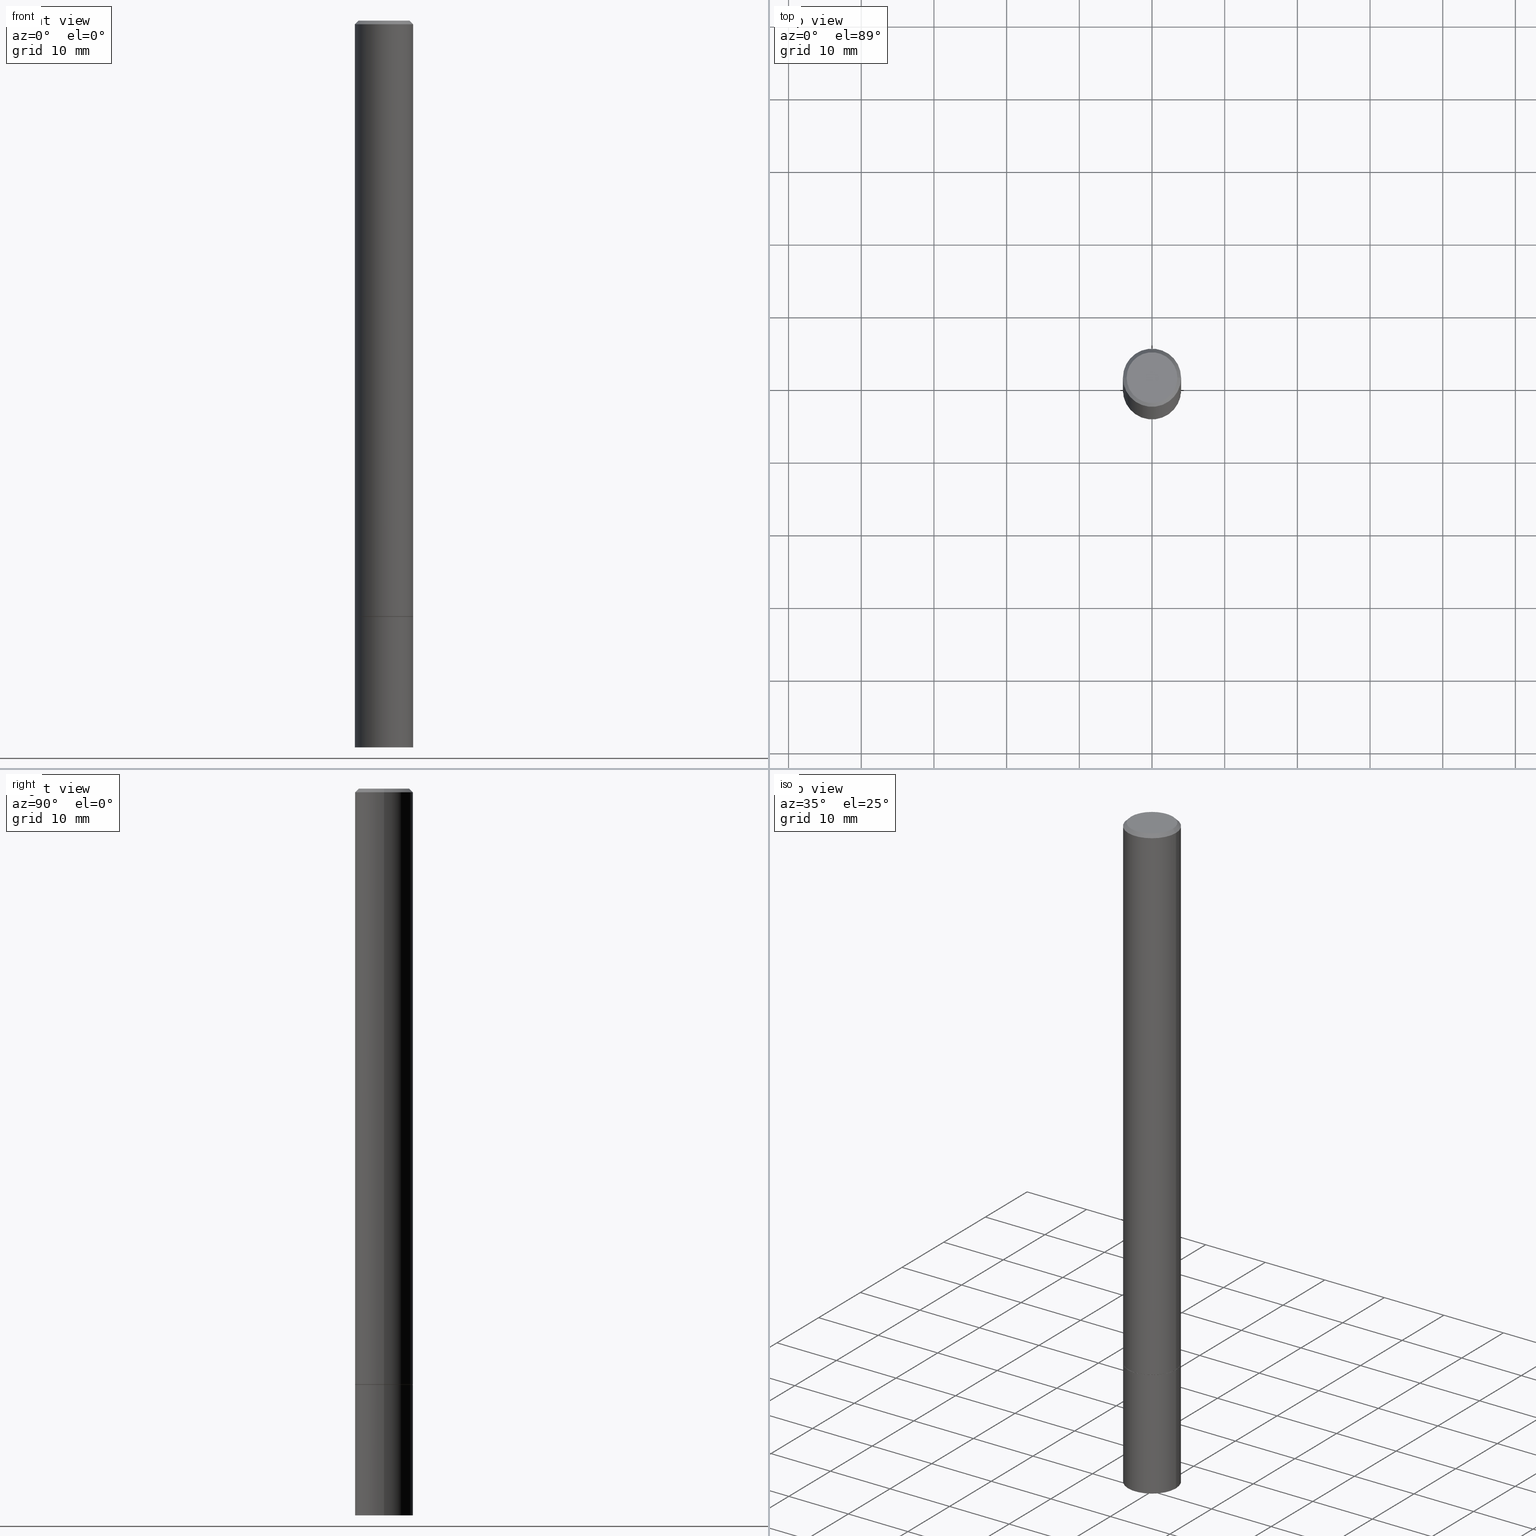
[diagram: canonical four-view strip — front | top / right | iso, engineering-drawing reading convention]
A machine part, canonical four-view strip (front | top / right | iso — engineering-drawing reading convention). The complete STEP part file that produces these views, byte-faithful:
ISO-10303-21;
HEADER;
FILE_DESCRIPTION (( 'STEP AP203' ),
    '1' );
FILE_NAME ('46141.STEP',
    '2024-02-28T10:05:58',
    ( '' ),
    ( '' ),
    'SwSTEP 2.0',
    'SolidWorks 2023',
    '' );
FILE_SCHEMA (( 'CONFIG_CONTROL_DESIGN' ));
ENDSEC;

DATA;
#1 = ORIENTED_EDGE ( 'NONE', *, *, #143, .F. ) ;
#2 = VERTEX_POINT ( 'NONE', #274 ) ;
#3 = DIRECTION ( 'NONE',  ( 0.000000000000000000, 0.000000000000000000, 1.000000000000000000 ) ) ;
#4 = DIRECTION ( 'NONE',  ( 1.000000000000000000, -6.982962677686265922E-15, 0.000000000000000000 ) ) ;
#5 = ORIENTED_EDGE ( 'NONE', *, *, #206, .T. ) ;
#6 = DIRECTION ( 'NONE',  ( -1.000000000000000000, 6.982962677686265922E-15, -4.876176775795935793E-29 ) ) ;
#7 = APPROVAL_ROLE ( '' ) ;
#8 = CARTESIAN_POINT ( 'NONE',  ( 9.601573681818585173E-16, 0.1374999999999995670, -4.779444278458807216E-16 ) ) ;
#9 = VECTOR ( 'NONE', #259, 39.37007874015748143 ) ;
#10 = VECTOR ( 'NONE', #180, 39.37007874015748143 ) ;
#11 = FACE_OUTER_BOUND ( 'NONE', #20, .T. ) ;
#12 = DIRECTION ( 'NONE',  ( 1.000000000000000000, -6.982962677686261977E-15, 0.000000000000000000 ) ) ;
#13 = APPROVAL_ROLE ( '' ) ;
#14 = CARTESIAN_POINT ( 'NONE',  ( 0.1575000000000000011, -1.237136582792291392E-14, -3.228299999999999947 ) ) ;
#15 = AXIS2_PLACEMENT_3D ( 'NONE', #102, #333, #237 ) ;
#16 = CARTESIAN_POINT ( 'NONE',  ( -0.1574999999999995570, 1.029986994958720829E-15, -0.02000000000000003511 ) ) ;
#17 = MANIFOLD_SOLID_BREP ( 'Body-Move/Copy2[1]', #195 ) ;
#18 = EDGE_CURVE ( 'NONE', #26, #364, #77, .T. ) ;
#19 = DIRECTION ( 'NONE',  ( -2.445468806185136597E-29, 3.491481338843145583E-15, 1.000000000000000000 ) ) ;
#20 = EDGE_LOOP ( 'NONE', ( #54, #32 ) ) ;
#21 = DIRECTION ( 'NONE',  ( -2.445468806185136597E-29, 3.491481338843145583E-15, 1.000000000000000000 ) ) ;
#22 = DIRECTION ( 'NONE',  ( 1.000000000000000000, -6.982962677686265922E-15, 0.000000000000000000 ) ) ;
#23 = AXIS2_PLACEMENT_3D ( 'NONE', #331, #19, #22 ) ;
#24 = EDGE_LOOP ( 'NONE', ( #79, #116 ) ) ;
#25 = CARTESIAN_POINT ( 'NONE',  ( 0.000000000000000000, 0.000000000000000000, 0.000000000000000000 ) ) ;
#26 = VERTEX_POINT ( 'NONE', #271 ) ;
#27 = APPLICATION_PROTOCOL_DEFINITION ( 'international standard', 'config_control_design', 1994, #163 ) ;
#28 = VERTEX_POINT ( 'NONE', #222 ) ;
#29 = APPLICATION_CONTEXT ( 'configuration controlled 3d designs of mechanical parts and assemblies' ) ;
#30 = CIRCLE ( 'NONE', #133, 0.1575000000000000011 ) ;
#31 = CC_DESIGN_PERSON_AND_ORGANIZATION_ASSIGNMENT ( #106, #218, ( #59 ) ) ;
#32 = ORIENTED_EDGE ( 'NONE', *, *, #249, .F. ) ;
#33 = EDGE_LOOP ( 'NONE', ( #220, #171, #198, #265 ) ) ;
#34 = ORIENTED_EDGE ( 'NONE', *, *, #260, .F. ) ;
#35 = VECTOR ( 'NONE', #44, 39.37007874015748143 ) ;
#36 = ADVANCED_FACE ( 'NONE', ( #200 ), #338, .T. ) ;
#37 = CARTESIAN_POINT ( 'NONE',  ( -0.1574999999999997513, 1.119104808822156026E-15, -7.747322767151464373E-30 ) ) ;
#38 = COORDINATED_UNIVERSAL_TIME_OFFSET ( 5, 0, .BEHIND. ) ;
#39 = DIRECTION ( 'NONE',  ( -1.000000000000000000, 6.982962677686265922E-15, -4.876176775795935793E-29 ) ) ;
#40 = CARTESIAN_POINT ( 'NONE',  ( 7.894706947007477118E-29, -1.127154920618732880E-14, -3.228299999999999947 ) ) ;
#41 = PERSON_AND_ORGANIZATION_ROLE ( 'creator' ) ;
#42 = CARTESIAN_POINT ( 'NONE',  ( 1.099816621735665577E-15, 0.1574999999999887323, -3.228300000000000836 ) ) ;
#43 = EDGE_CURVE ( 'NONE', #110, #324, #268, .T. ) ;
#44 = DIRECTION ( 'NONE',  ( 0.7071067811865466846, -7.319954787623252890E-15, -0.7071067811865483499 ) ) ;
#45 = CC_DESIGN_DATE_AND_TIME_ASSIGNMENT ( #68, #332, ( #95 ) ) ;
#46 = CONICAL_SURFACE ( 'NONE', #127, 0.1574999999999995570, 0.7853981633974471688 ) ;
#47 = DIRECTION ( 'NONE',  ( -2.445468806185136597E-29, 3.491481338843145583E-15, 1.000000000000000000 ) ) ;
#48 = DIRECTION ( 'NONE',  ( -2.445468806185136597E-29, 3.491481338843145583E-15, 1.000000000000000000 ) ) ;
#49 = DIRECTION ( 'NONE',  ( -2.445468806185136597E-29, 3.491481338843145583E-15, 1.000000000000000000 ) ) ;
#50 = VERTEX_POINT ( 'NONE', #113 ) ;
#51 = CC_DESIGN_DATE_AND_TIME_ASSIGNMENT ( #147, #149, ( #107 ) ) ;
#52 = MECHANICAL_CONTEXT ( 'NONE', #163, 'mechanical' ) ;
#53 = VERTEX_POINT ( 'NONE', #309 ) ;
#54 = ORIENTED_EDGE ( 'NONE', *, *, #89, .F. ) ;
#55 = AXIS2_PLACEMENT_3D ( 'NONE', #42, #350, #39 ) ;
#56 = EDGE_LOOP ( 'NONE', ( #1, #308, #201, #58 ) ) ;
#57 = AXIS2_PLACEMENT_3D ( 'NONE', #357, #47, #291 ) ;
#58 = ORIENTED_EDGE ( 'NONE', *, *, #216, .F. ) ;
#59 = PRODUCT ( '46141', '46141', '', ( #52 ) ) ;
#60 = ORIENTED_EDGE ( 'NONE', *, *, #318, .T. ) ;
#61 = APPROVAL ( #132, 'UNSPECIFIED' ) ;
#62 = LINE ( 'NONE', #37, #108 ) ;
#63 = CARTESIAN_POINT ( 'NONE',  ( 0.1575000000000000011, -1.099816621735586889E-15, 7.679978421878598033E-30 ) ) ;
#64 = DIRECTION ( 'NONE',  ( 1.000000000000000000, -6.982962677686261977E-15, 0.000000000000000000 ) ) ;
#65 = LINE ( 'NONE', #203, #35 ) ;
#66 = CC_DESIGN_SECURITY_CLASSIFICATION ( #95, ( #101 ) ) ;
#67 = LINE ( 'NONE', #156, #262 ) ;
#68 = DATE_AND_TIME ( #190, #273 ) ;
#69 = CARTESIAN_POINT ( 'NONE',  ( 0.1575000000000000011, -1.484577865276105011E-14, -3.937000000000000277 ) ) ;
#70 = COORDINATED_UNIVERSAL_TIME_OFFSET ( 5, 0, .BEHIND. ) ;
#71 = EDGE_LOOP ( 'NONE', ( #272, #343, #306, #303 ) ) ;
#72 = LOCAL_TIME ( 5, 5, 58.00000000000000000, #252 ) ;
#73 = CIRCLE ( 'NONE', #311, 0.1575000000000000011 ) ;
#74 = LINE ( 'NONE', #16, #244 ) ;
#75 = EDGE_CURVE ( 'NONE', #28, #196, #94, .T. ) ;
#76 = ORIENTED_EDGE ( 'NONE', *, *, #216, .T. ) ;
#77 = CIRCLE ( 'NONE', #223, 0.1575000000000000011 ) ;
#78 = DIRECTION ( 'NONE',  ( 1.000000000000000000, 0.000000000000000000, 0.000000000000000000 ) ) ;
#79 = ORIENTED_EDGE ( 'NONE', *, *, #229, .F. ) ;
#80 = ORIENTED_EDGE ( 'NONE', *, *, #89, .T. ) ;
#81 = DIRECTION ( 'NONE',  ( 2.445468806185136597E-29, -3.491481338843145583E-15, -1.000000000000000000 ) ) ;
#82 = ORIENTED_EDGE ( 'NONE', *, *, #289, .T. ) ;
#83 = EDGE_LOOP ( 'NONE', ( #80, #5, #328, #337 ) ) ;
#84 = APPROVAL_DATE_TIME ( #257, #124 ) ;
#85 = DIRECTION ( 'NONE',  ( -1.000000000000000000, 6.982962677686265922E-15, -4.876176775795935793E-29 ) ) ;
#86 = CIRCLE ( 'NONE', #278, 0.1374999999999995670 ) ;
#87 = AXIS2_PLACEMENT_3D ( 'NONE', #104, #49, #326 ) ;
#88 = DIRECTION ( 'NONE',  ( -2.445468806185136597E-29, 3.491481338843145583E-15, 1.000000000000000000 ) ) ;
#89 = EDGE_CURVE ( 'NONE', #2, #219, #119, .T. ) ;
#90 = PLANE ( 'NONE',  #55 ) ;
#91 = UNCERTAINTY_MEASURE_WITH_UNIT (LENGTH_MEASURE( 1.000000000000000082E-05 ), #267, 'distance_accuracy_value', 'NONE');
#92 = CALENDAR_DATE ( 2024, 28, 2 ) ;
#93 = FACE_OUTER_BOUND ( 'NONE', #111, .T. ) ;
#94 = CIRCLE ( 'NONE', #112, 0.1374999999999995670 ) ;
#95 = SECURITY_CLASSIFICATION ( '', '', #266 ) ;
#96 = CC_DESIGN_PERSON_AND_ORGANIZATION_ASSIGNMENT ( #122, #41, ( #101 ) ) ;
#97 = CARTESIAN_POINT ( 'NONE',  ( 1.099816621735683130E-15, 0.1574999999999862343, -3.937000000000000721 ) ) ;
#98 =( NAMED_UNIT ( * ) PLANE_ANGLE_UNIT ( ) SI_UNIT ( $, .RADIAN. ) );
#99 = CARTESIAN_POINT ( 'NONE',  ( 0.000000000000000000, 0.000000000000000000, 0.000000000000000000 ) ) ;
#100 = PRODUCT_DEFINITION_SHAPE ( 'NONE', 'NONE',  #107 ) ;
#101 = PRODUCT_DEFINITION_FORMATION_WITH_SPECIFIED_SOURCE ( 'ANY', '', #59, .NOT_KNOWN. ) ;
#102 = CARTESIAN_POINT ( 'NONE',  ( 7.894706947007478239E-29, -1.127154920618732880E-14, -3.228300000000000836 ) ) ;
#103 = EDGE_CURVE ( 'NONE', #53, #50, #137, .T. ) ;
#104 = CARTESIAN_POINT ( 'NONE',  ( 0.000000000000000000, 0.000000000000000000, 0.000000000000000000 ) ) ;
#105 = EDGE_LOOP ( 'NONE', ( #212, #76 ) ) ;
#106 = PERSON_AND_ORGANIZATION ( #186, #146 ) ;
#107 = PRODUCT_DEFINITION ( 'UNKNOWN', '', #101, #300 ) ;
#108 = VECTOR ( 'NONE', #227, 39.37007874015748143 ) ;
#109 = DIRECTION ( 'NONE',  ( 1.000000000000000000, -6.982962677686267499E-15, 0.000000000000000000 ) ) ;
#110 = VERTEX_POINT ( 'NONE', #205 ) ;
#111 = EDGE_LOOP ( 'NONE', ( #361, #134 ) ) ;
#112 = AXIS2_PLACEMENT_3D ( 'NONE', #276, #251, #226 ) ;
#113 = CARTESIAN_POINT ( 'NONE',  ( 0.1575000000000000011, -1.236787434658407249E-14, -3.227300000000000502 ) ) ;
#114 = EDGE_CURVE ( 'NONE', #50, #324, #67, .T. ) ;
#115 = APPROVAL_DATE_TIME ( #176, #167 ) ;
#116 = ORIENTED_EDGE ( 'NONE', *, *, #18, .F. ) ;
#117 = CARTESIAN_POINT ( 'NONE',  ( 7.894706947007477118E-29, -1.127154920618732880E-14, -3.228299999999999947 ) ) ;
#118 = FACE_OUTER_BOUND ( 'NONE', #33, .T. ) ;
#119 = CIRCLE ( 'NONE', #209, 0.1565000000000000002 ) ;
#120 = LOCAL_TIME ( 5, 5, 58.00000000000000000, #359 ) ;
#121 = DIRECTION ( 'NONE',  ( 1.000000000000000000, -6.982962677686265922E-15, 4.876176775795935793E-29 ) ) ;
#122 = PERSON_AND_ORGANIZATION ( #186, #146 ) ;
#123 = FACE_OUTER_BOUND ( 'NONE', #297, .T. ) ;
#124 = APPROVAL ( #254, 'UNSPECIFIED' ) ;
#125 = PLANE ( 'NONE',  #235 ) ;
#126 = CIRCLE ( 'NONE', #263, 0.1575000000000000011 ) ;
#127 = AXIS2_PLACEMENT_3D ( 'NONE', #238, #215, #360 ) ;
#128 = PERSON_AND_ORGANIZATION ( #186, #146 ) ;
#129 = DIRECTION ( 'NONE',  ( 1.000000000000000000, -6.982962677686266711E-15, 4.876176775795935793E-29 ) ) ;
#130 = PERSON_AND_ORGANIZATION_ROLE ( 'classification_officer' ) ;
#131 = FACE_OUTER_BOUND ( 'NONE', #71, .T. ) ;
#132 = APPROVAL_STATUS ( 'not_yet_approved' ) ;
#133 = AXIS2_PLACEMENT_3D ( 'NONE', #296, #21, #157 ) ;
#134 = ORIENTED_EDGE ( 'NONE', *, *, #193, .T. ) ;
#135 = CYLINDRICAL_SURFACE ( 'NONE', #87, 0.1575000000000000011 ) ;
#136 = ORIENTED_EDGE ( 'NONE', *, *, #185, .F. ) ;
#137 = CIRCLE ( 'NONE', #144, 0.1575000000000000011 ) ;
#138 = CC_DESIGN_APPROVAL ( #167, ( #107 ) ) ;
#139 = EDGE_LOOP ( 'NONE', ( #187, #305, #34, #341 ) ) ;
#140 = MANIFOLD_SOLID_BREP ( 'Body-Move/Copy2[2]', #292 ) ;
#141 = CARTESIAN_POINT ( 'NONE',  ( 9.627810689950883669E-29, -1.374596203102546341E-14, -3.937000000000000277 ) ) ;
#142 = CARTESIAN_POINT ( 'NONE',  ( 4.890937612370281041E-31, -6.982962677686302702E-17, -0.02000000000000003511 ) ) ;
#143 = EDGE_CURVE ( 'NONE', #26, #336, #182, .T. ) ;
#144 = AXIS2_PLACEMENT_3D ( 'NONE', #335, #255, #320 ) ;
#145 = ORIENTED_EDGE ( 'NONE', *, *, #304, .T. ) ;
#146 = ORGANIZATION ( 'UNSPECIFIED', 'UNSPECIFIED', '' ) ;
#147 = DATE_AND_TIME ( #280, #250 ) ;
#148 = CARTESIAN_POINT ( 'NONE',  ( 7.894706947007478239E-29, -1.127154920618732880E-14, -3.228300000000000836 ) ) ;
#149 = DATE_TIME_ROLE ( 'creation_date' ) ;
#150 = PLANE ( 'NONE',  #352 ) ;
#151 = APPROVAL_ROLE ( '' ) ;
#152 = DIRECTION ( 'NONE',  ( -2.438088387897960049E-29, 3.491481338843145188E-15, 1.000000000000000000 ) ) ;
#153 = VECTOR ( 'NONE', #261, 39.37007874015748143 ) ;
#154 = CARTESIAN_POINT ( 'NONE',  ( 7.894706947007477118E-29, -1.127154920618732880E-14, -3.228299999999999947 ) ) ;
#155 = CALENDAR_DATE ( 2024, 28, 2 ) ;
#156 = CARTESIAN_POINT ( 'NONE',  ( 0.1574999999999997513, -1.099816621735585311E-15, 7.679978421878586823E-30 ) ) ;
#157 = DIRECTION ( 'NONE',  ( 1.000000000000000000, -6.982962677686261977E-15, 0.000000000000000000 ) ) ;
#158 = APPROVAL_PERSON_ORGANIZATION ( #128, #61, #13 ) ;
#159 = CALENDAR_DATE ( 2024, 28, 2 ) ;
#160 = FACE_OUTER_BOUND ( 'NONE', #170, .T. ) ;
#161 = FACE_OUTER_BOUND ( 'NONE', #56, .T. ) ;
#162 = ORIENTED_EDGE ( 'NONE', *, *, #185, .T. ) ;
#163 = APPLICATION_CONTEXT ( 'configuration controlled 3d designs of mechanical parts and assemblies' ) ;
#164 = VERTEX_POINT ( 'NONE', #14 ) ;
#165 = CIRCLE ( 'NONE', #23, 0.1574999999999995570 ) ;
#166 = CARTESIAN_POINT ( 'NONE',  ( 0.1565000000000000002, -1.236438286524522948E-14, -3.228300000000000836 ) ) ;
#167 = APPROVAL ( #316, 'UNSPECIFIED' ) ;
#168 = ADVANCED_BREP_SHAPE_REPRESENTATION ( '46141', ( #17, #140, #347 ), #358 ) ;
#169 = DIRECTION ( 'NONE',  ( 1.000000000000000000, -6.982962677686261977E-15, 0.000000000000000000 ) ) ;
#170 = EDGE_LOOP ( 'NONE', ( #175, #162, #145, #194 ) ) ;
#171 = ORIENTED_EDGE ( 'NONE', *, *, #249, .T. ) ;
#172 = APPLICATION_PROTOCOL_DEFINITION ( 'international standard', 'config_control_design', 1994, #29 ) ;
#173 = ADVANCED_FACE ( 'NONE', ( #313 ), #90, .F. ) ;
#174 = ORIENTED_EDGE ( 'NONE', *, *, #221, .T. ) ;
#175 = ORIENTED_EDGE ( 'NONE', *, *, #193, .F. ) ;
#176 = DATE_AND_TIME ( #155, #339 ) ;
#177 = DIRECTION ( 'NONE',  ( -0.7071067811864267805, 7.493145998869918709E-15, 0.7071067811866682540 ) ) ;
#178 = CONICAL_SURFACE ( 'NONE', #15, 0.1565000000000000002, 0.7853981633972775267 ) ;
#179 = ADVANCED_FACE ( 'NONE', ( #93 ), #150, .F. ) ;
#180 = DIRECTION ( 'NONE',  ( -2.445468806185136877E-29, 3.491481338843145188E-15, 1.000000000000000000 ) ) ;
#181 = COORDINATED_UNIVERSAL_TIME_OFFSET ( 5, 0, .BEHIND. ) ;
#182 = LINE ( 'NONE', #256, #9 ) ;
#183 = DIRECTION ( 'NONE',  ( -2.445468806185136877E-29, 3.491481338843145188E-15, 1.000000000000000000 ) ) ;
#184 = DIRECTION ( 'NONE',  ( 1.000000000000000000, -6.982962677686261977E-15, 0.000000000000000000 ) ) ;
#185 = EDGE_CURVE ( 'NONE', #196, #324, #65, .T. ) ;
#186 = PERSON ( 'UNSPECIFIED', 'UNSPECIFIED', 'UNSPECIFIED', ('UNSPECIFIED'), ('UNSPECIFIED'), ('UNSPECIFIED') ) ;
#187 = ORIENTED_EDGE ( 'NONE', *, *, #229, .T. ) ;
#188 = ADVANCED_FACE ( 'NONE', ( #354 ), #125, .T. ) ;
#189 = AXIS2_PLACEMENT_3D ( 'NONE', #40, #152, #121 ) ;
#190 = CALENDAR_DATE ( 2024, 28, 2 ) ;
#191 = DIRECTION ( 'NONE',  ( -0.7071067811865466846, 2.468850131082247989E-15, -0.7071067811865483499 ) ) ;
#192 =( NAMED_UNIT ( * ) SI_UNIT ( $, .STERADIAN. ) SOLID_ANGLE_UNIT ( ) );
#193 = EDGE_CURVE ( 'NONE', #196, #28, #86, .T. ) ;
#194 = ORIENTED_EDGE ( 'NONE', *, *, #318, .F. ) ;
#195 = CLOSED_SHELL ( 'NONE', ( #351, #188, #173, #340 ) ) ;
#196 = VERTEX_POINT ( 'NONE', #348 ) ;
#197 = CARTESIAN_POINT ( 'NONE',  ( 0.000000000000000000, 0.000000000000000000, 0.000000000000000000 ) ) ;
#198 = ORIENTED_EDGE ( 'NONE', *, *, #295, .T. ) ;
#199 = DIRECTION ( 'NONE',  ( -1.000000000000000000, 6.982962677686265922E-15, 0.000000000000000000 ) ) ;
#200 = FACE_OUTER_BOUND ( 'NONE', #299, .T. ) ;
#201 = ORIENTED_EDGE ( 'NONE', *, *, #225, .T. ) ;
#202 = PRODUCT_RELATED_PRODUCT_CATEGORY ( 'detail', '', ( #59 ) ) ;
#203 = CARTESIAN_POINT ( 'NONE',  ( 0.1574999999999995570, -1.150358061425876119E-15, -0.02000000000000003511 ) ) ;
#204 = CARTESIAN_POINT ( 'NONE',  ( 9.627810689950883669E-29, -1.374596203102546341E-14, -3.937000000000000277 ) ) ;
#205 = CARTESIAN_POINT ( 'NONE',  ( -0.1574999999999995570, 1.029986994958720829E-15, -0.02000000000000003511 ) ) ;
#206 = EDGE_CURVE ( 'NONE', #219, #53, #233, .T. ) ;
#207 = PERSON_AND_ORGANIZATION ( #186, #146 ) ;
#208 = CARTESIAN_POINT ( 'NONE',  ( -1.043851414335219820E-46, 1.490343170380447200E-32, 4.268512490100411279E-18 ) ) ;
#209 = AXIS2_PLACEMENT_3D ( 'NONE', #242, #365, #109 ) ;
#210 = ADVANCED_FACE ( 'NONE', ( #118 ), #334, .T. ) ;
#211 =( LENGTH_UNIT ( ) NAMED_UNIT ( * ) SI_UNIT ( $, .METRE. ) );
#212 = ORIENTED_EDGE ( 'NONE', *, *, #260, .T. ) ;
#213 = APPROVAL_PERSON_ORGANIZATION ( #312, #167, #7 ) ;
#214 = ORIENTED_EDGE ( 'NONE', *, *, #75, .F. ) ;
#215 = DIRECTION ( 'NONE',  ( 2.445468806185136597E-29, -3.491481338843145583E-15, -1.000000000000000000 ) ) ;
#216 = EDGE_CURVE ( 'NONE', #336, #164, #126, .T. ) ;
#217 = CC_DESIGN_APPROVAL ( #124, ( #101 ) ) ;
#218 = PERSON_AND_ORGANIZATION_ROLE ( 'design_owner' ) ;
#219 = VERTEX_POINT ( 'NONE', #288 ) ;
#220 = ORIENTED_EDGE ( 'NONE', *, *, #206, .F. ) ;
#221 = EDGE_CURVE ( 'NONE', #53, #110, #62, .T. ) ;
#222 = CARTESIAN_POINT ( 'NONE',  ( -0.1374999999999995670, 9.950721815702897719E-16, 4.268512490093574228E-18 ) ) ;
#223 = AXIS2_PLACEMENT_3D ( 'NONE', #141, #247, #169 ) ;
#224 = ORIENTED_EDGE ( 'NONE', *, *, #43, .T. ) ;
#225 = EDGE_CURVE ( 'NONE', #364, #164, #345, .T. ) ;
#226 = DIRECTION ( 'NONE',  ( 1.000000000000000000, -6.982962677686267499E-15, 4.876173381029115737E-29 ) ) ;
#227 = DIRECTION ( 'NONE',  ( -2.445468806185136877E-29, 3.491481338843145188E-15, 1.000000000000000000 ) ) ;
#228 = VECTOR ( 'NONE', #177, 39.37007874015748143 ) ;
#229 = EDGE_CURVE ( 'NONE', #364, #26, #353, .T. ) ;
#230 = DIRECTION ( 'NONE',  ( -2.445468806185136597E-29, 3.491481338843145583E-15, 1.000000000000000000 ) ) ;
#231 = CARTESIAN_POINT ( 'NONE',  ( 7.894706947007478239E-29, -1.127154920618732880E-14, -3.228300000000000836 ) ) ;
#232 = ADVANCED_FACE ( 'NONE', ( #11 ), #284, .F. ) ;
#233 = LINE ( 'NONE', #281, #228 ) ;
#234 = DIRECTION ( 'NONE',  ( 2.438088387897960049E-29, -3.491481338843145188E-15, -1.000000000000000000 ) ) ;
#235 = AXIS2_PLACEMENT_3D ( 'NONE', #97, #310, #85 ) ;
#236 = CC_DESIGN_PERSON_AND_ORGANIZATION_ASSIGNMENT ( #285, #344, ( #107 ) ) ;
#237 = DIRECTION ( 'NONE',  ( 1.000000000000000000, -6.982962677686267499E-15, 0.000000000000000000 ) ) ;
#238 = CARTESIAN_POINT ( 'NONE',  ( 4.890937612370281041E-31, -6.982962677686302702E-17, -0.02000000000000003511 ) ) ;
#239 = CYLINDRICAL_SURFACE ( 'NONE', #57, 0.1575000000000000011 ) ;
#240 = PERSON_AND_ORGANIZATION_ROLE ( 'design_supplier' ) ;
#241 = CARTESIAN_POINT ( 'NONE',  ( -0.1575000000000000011, -1.138965080978423772E-14, -3.228299999999999947 ) ) ;
#242 = CARTESIAN_POINT ( 'NONE',  ( 7.894706947007478239E-29, -1.127154920618732880E-14, -3.228300000000000836 ) ) ;
#243 = AXIS2_PLACEMENT_3D ( 'NONE', #275, #81, #199 ) ;
#244 = VECTOR ( 'NONE', #191, 39.37007874015748143 ) ;
#245 = CC_DESIGN_PERSON_AND_ORGANIZATION_ASSIGNMENT ( #207, #240, ( #101 ) ) ;
#246 = ORIENTED_EDGE ( 'NONE', *, *, #114, .F. ) ;
#247 = DIRECTION ( 'NONE',  ( -2.445468806185136597E-29, 3.491481338843145583E-15, 1.000000000000000000 ) ) ;
#248 = DIRECTION ( 'NONE',  ( -2.445468806185136597E-29, 3.491481338843145583E-15, 1.000000000000000000 ) ) ;
#249 = EDGE_CURVE ( 'NONE', #219, #2, #279, .T. ) ;
#250 = LOCAL_TIME ( 5, 5, 58.00000000000000000, #181 ) ;
#251 = DIRECTION ( 'NONE',  ( -2.445468806185136597E-29, 3.491481338843145583E-15, 1.000000000000000000 ) ) ;
#252 = COORDINATED_UNIVERSAL_TIME_OFFSET ( 5, 0, .BEHIND. ) ;
#253 = DIRECTION ( 'NONE',  ( 1.000000000000000000, -6.982962677686267499E-15, 0.000000000000000000 ) ) ;
#254 = APPROVAL_STATUS ( 'not_yet_approved' ) ;
#255 = DIRECTION ( 'NONE',  ( -2.445468806185136597E-29, 3.491481338843145583E-15, 1.000000000000000000 ) ) ;
#256 = CARTESIAN_POINT ( 'NONE',  ( -0.1575000000000000011, 1.119104808822157801E-15, -7.747322767151475583E-30 ) ) ;
#257 = DATE_AND_TIME ( #92, #72 ) ;
#258 = DIRECTION ( 'NONE',  ( -2.445468806185136597E-29, 3.491481338843145583E-15, 1.000000000000000000 ) ) ;
#259 = DIRECTION ( 'NONE',  ( -2.445468806185136877E-29, 3.491481338843145188E-15, 1.000000000000000000 ) ) ;
#260 = EDGE_CURVE ( 'NONE', #164, #336, #73, .T. ) ;
#261 = DIRECTION ( 'NONE',  ( 0.7071067811864267805, -2.468850131080992517E-15, 0.7071067811866682540 ) ) ;
#262 = VECTOR ( 'NONE', #183, 39.37007874015748143 ) ;
#263 = AXIS2_PLACEMENT_3D ( 'NONE', #117, #88, #184 ) ;
#264 = APPROVAL_DATE_TIME ( #321, #61 ) ;
#265 = ORIENTED_EDGE ( 'NONE', *, *, #103, .F. ) ;
#266 = SECURITY_CLASSIFICATION_LEVEL ( 'unclassified' ) ;
#267 =( CONVERSION_BASED_UNIT ( 'INCH', #323 ) LENGTH_UNIT ( ) NAMED_UNIT ( #294 ) );
#268 = CIRCLE ( 'NONE', #346, 0.1574999999999995570 ) ;
#269 = AXIS2_PLACEMENT_3D ( 'NONE', #25, #355, #129 ) ;
#270 = CARTESIAN_POINT ( 'NONE',  ( 0.1574999999999995570, -1.150358061425876119E-15, -0.02000000000000003511 ) ) ;
#271 = CARTESIAN_POINT ( 'NONE',  ( -0.1575000000000000011, -1.138965080978423772E-14, -3.937000000000000277 ) ) ;
#272 = ORIENTED_EDGE ( 'NONE', *, *, #221, .F. ) ;
#273 = LOCAL_TIME ( 5, 5, 58.00000000000000000, #70 ) ;
#274 = CARTESIAN_POINT ( 'NONE',  ( 0.1565000000000000002, -1.236438286524522948E-14, -3.228300000000000836 ) ) ;
#275 = CARTESIAN_POINT ( 'NONE',  ( 4.890937612370281041E-31, -6.982962677686302702E-17, -0.02000000000000003511 ) ) ;
#276 = CARTESIAN_POINT ( 'NONE',  ( -1.043851414335219820E-46, 1.490343170380447200E-32, 4.268512490100411279E-18 ) ) ;
#277 = ADVANCED_FACE ( 'NONE', ( #123 ), #301, .T. ) ;
#278 = AXIS2_PLACEMENT_3D ( 'NONE', #208, #282, #317 ) ;
#279 = CIRCLE ( 'NONE', #307, 0.1565000000000000002 ) ;
#280 = CALENDAR_DATE ( 2024, 28, 2 ) ;
#281 = CARTESIAN_POINT ( 'NONE',  ( -0.1565000000000000002, -1.015954982472277142E-14, -3.228300000000000836 ) ) ;
#282 = DIRECTION ( 'NONE',  ( -2.445468806185136597E-29, 3.491481338843145583E-15, 1.000000000000000000 ) ) ;
#283 = ADVANCED_FACE ( 'NONE', ( #160 ), #46, .T. ) ;
#284 = PLANE ( 'NONE',  #189 ) ;
#285 = PERSON_AND_ORGANIZATION ( #186, #146 ) ;
#286 = AXIS2_PLACEMENT_3D ( 'NONE', #204, #315, #64 ) ;
#287 = DIRECTION ( 'NONE',  ( 1.000000000000000000, -6.982962677686267499E-15, 0.000000000000000000 ) ) ;
#288 = CARTESIAN_POINT ( 'NONE',  ( -0.1565000000000000002, -1.015425137037454902E-14, -3.228300000000000836 ) ) ;
#289 = EDGE_CURVE ( 'NONE', #50, #53, #30, .T. ) ;
#290 = DIRECTION ( 'NONE',  ( 1.000000000000000000, -6.982962677686266711E-15, 4.876176775795935793E-29 ) ) ;
#291 = DIRECTION ( 'NONE',  ( 1.000000000000000000, -6.982962677686265922E-15, 4.876176775795935232E-29 ) ) ;
#292 = CLOSED_SHELL ( 'NONE', ( #362, #277, #283, #36, #314, #210, #232, #179 ) ) ;
#293 = ORIENTED_EDGE ( 'NONE', *, *, #304, .F. ) ;
#294 = DIMENSIONAL_EXPONENTS ( 1.000000000000000000, 0.000000000000000000, 0.000000000000000000, 0.000000000000000000, 0.000000000000000000, 0.000000000000000000, 0.000000000000000000 ) ;
#295 = EDGE_CURVE ( 'NONE', #2, #50, #322, .T. ) ;
#296 = CARTESIAN_POINT ( 'NONE',  ( 7.892261478201291515E-29, -1.126805772484848580E-14, -3.227300000000000502 ) ) ;
#297 = EDGE_LOOP ( 'NONE', ( #82, #174, #293, #246 ) ) ;
#298 = FACE_OUTER_BOUND ( 'NONE', #139, .T. ) ;
#299 = EDGE_LOOP ( 'NONE', ( #136, #214, #60, #224 ) ) ;
#300 = DESIGN_CONTEXT ( 'detailed design', #29, 'design' ) ;
#301 = CYLINDRICAL_SURFACE ( 'NONE', #302, 0.1574999999999997513 ) ;
#302 = AXIS2_PLACEMENT_3D ( 'NONE', #99, #48, #290 ) ;
#303 = ORIENTED_EDGE ( 'NONE', *, *, #43, .F. ) ;
#304 = EDGE_CURVE ( 'NONE', #324, #110, #165, .T. ) ;
#305 = ORIENTED_EDGE ( 'NONE', *, *, #143, .T. ) ;
#306 = ORIENTED_EDGE ( 'NONE', *, *, #114, .T. ) ;
#307 = AXIS2_PLACEMENT_3D ( 'NONE', #231, #349, #287 ) ;
#308 = ORIENTED_EDGE ( 'NONE', *, *, #18, .T. ) ;
#309 = CARTESIAN_POINT ( 'NONE',  ( -0.1575000000000000011, -4.549838866990506689E-15, -3.227300000000000502 ) ) ;
#310 = DIRECTION ( 'NONE',  ( 2.438088387897960049E-29, -3.491481338843145188E-15, -1.000000000000000000 ) ) ;
#311 = AXIS2_PLACEMENT_3D ( 'NONE', #154, #258, #12 ) ;
#312 = PERSON_AND_ORGANIZATION ( #186, #146 ) ;
#313 = FACE_OUTER_BOUND ( 'NONE', #105, .T. ) ;
#314 = ADVANCED_FACE ( 'NONE', ( #131 ), #363, .T. ) ;
#315 = DIRECTION ( 'NONE',  ( -2.445468806185136597E-29, 3.491481338843145583E-15, 1.000000000000000000 ) ) ;
#316 = APPROVAL_STATUS ( 'not_yet_approved' ) ;
#317 = DIRECTION ( 'NONE',  ( 1.000000000000000000, -6.982962677686267499E-15, 4.876173381029115737E-29 ) ) ;
#318 = EDGE_CURVE ( 'NONE', #28, #110, #74, .T. ) ;
#319 = AXIS2_PLACEMENT_3D ( 'NONE', #148, #230, #253 ) ;
#320 = DIRECTION ( 'NONE',  ( 1.000000000000000000, -6.982962677686261977E-15, 0.000000000000000000 ) ) ;
#321 = DATE_AND_TIME ( #159, #120 ) ;
#322 = LINE ( 'NONE', #166, #153 ) ;
#323 = LENGTH_MEASURE_WITH_UNIT ( LENGTH_MEASURE( 0.02539999999999999897 ), #211 );
#324 = VERTEX_POINT ( 'NONE', #270 ) ;
#325 = SHAPE_DEFINITION_REPRESENTATION ( #100, #168 ) ;
#326 = DIRECTION ( 'NONE',  ( 1.000000000000000000, -6.982962677686265922E-15, 4.876176775795935232E-29 ) ) ;
#327 = CC_DESIGN_APPROVAL ( #61, ( #95 ) ) ;
#328 = ORIENTED_EDGE ( 'NONE', *, *, #289, .F. ) ;
#329 = CC_DESIGN_PERSON_AND_ORGANIZATION_ASSIGNMENT ( #330, #130, ( #95 ) ) ;
#330 = PERSON_AND_ORGANIZATION ( #186, #146 ) ;
#331 = CARTESIAN_POINT ( 'NONE',  ( 4.890937612370281041E-31, -6.982962677686302702E-17, -0.02000000000000003511 ) ) ;
#332 = DATE_TIME_ROLE ( 'classification_date' ) ;
#333 = DIRECTION ( 'NONE',  ( -2.445468806185136597E-29, 3.491481338843145583E-15, 1.000000000000000000 ) ) ;
#334 = CONICAL_SURFACE ( 'NONE', #319, 0.1565000000000000002, 0.7853981633972775267 ) ;
#335 = CARTESIAN_POINT ( 'NONE',  ( 7.892261478201291515E-29, -1.126805772484848580E-14, -3.227300000000000502 ) ) ;
#336 = VERTEX_POINT ( 'NONE', #241 ) ;
#337 = ORIENTED_EDGE ( 'NONE', *, *, #295, .F. ) ;
#338 = CONICAL_SURFACE ( 'NONE', #243, 0.1574999999999995570, 0.7853981633974471688 ) ;
#339 = LOCAL_TIME ( 5, 5, 58.00000000000000000, #38 ) ;
#340 = ADVANCED_FACE ( 'NONE', ( #161 ), #239, .T. ) ;
#341 = ORIENTED_EDGE ( 'NONE', *, *, #225, .F. ) ;
#342 = PERSON_AND_ORGANIZATION ( #186, #146 ) ;
#343 = ORIENTED_EDGE ( 'NONE', *, *, #103, .T. ) ;
#344 = PERSON_AND_ORGANIZATION_ROLE ( 'creator' ) ;
#345 = LINE ( 'NONE', #63, #10 ) ;
#346 = AXIS2_PLACEMENT_3D ( 'NONE', #142, #248, #4 ) ;
#347 = AXIS2_PLACEMENT_3D ( 'NONE', #197, #3, #78 ) ;
#348 = CARTESIAN_POINT ( 'NONE',  ( 0.1374999999999995670, -1.046838268059729336E-15, 4.268512490107428597E-18 ) ) ;
#349 = DIRECTION ( 'NONE',  ( -2.445468806185136597E-29, 3.491481338843145583E-15, 1.000000000000000000 ) ) ;
#350 = DIRECTION ( 'NONE',  ( 2.438088387897960049E-29, -3.491481338843145188E-15, -1.000000000000000000 ) ) ;
#351 = ADVANCED_FACE ( 'NONE', ( #298 ), #135, .T. ) ;
#352 = AXIS2_PLACEMENT_3D ( 'NONE', #8, #234, #6 ) ;
#353 = CIRCLE ( 'NONE', #286, 0.1575000000000000011 ) ;
#354 = FACE_OUTER_BOUND ( 'NONE', #24, .T. ) ;
#355 = DIRECTION ( 'NONE',  ( -2.445468806185136597E-29, 3.491481338843145583E-15, 1.000000000000000000 ) ) ;
#356 = FACE_OUTER_BOUND ( 'NONE', #83, .T. ) ;
#357 = CARTESIAN_POINT ( 'NONE',  ( 0.000000000000000000, 0.000000000000000000, 0.000000000000000000 ) ) ;
#358 =( GEOMETRIC_REPRESENTATION_CONTEXT ( 3 ) GLOBAL_UNCERTAINTY_ASSIGNED_CONTEXT ( ( #91 ) ) GLOBAL_UNIT_ASSIGNED_CONTEXT ( ( #267, #98, #192 ) ) REPRESENTATION_CONTEXT ( 'NONE', 'WORKASPACE' ) );
#359 = COORDINATED_UNIVERSAL_TIME_OFFSET ( 5, 0, .BEHIND. ) ;
#360 = DIRECTION ( 'NONE',  ( -1.000000000000000000, 6.982962677686265922E-15, 0.000000000000000000 ) ) ;
#361 = ORIENTED_EDGE ( 'NONE', *, *, #75, .T. ) ;
#362 = ADVANCED_FACE ( 'NONE', ( #356 ), #178, .T. ) ;
#363 = CYLINDRICAL_SURFACE ( 'NONE', #269, 0.1574999999999997513 ) ;
#364 = VERTEX_POINT ( 'NONE', #69 ) ;
#365 = DIRECTION ( 'NONE',  ( -2.445468806185136597E-29, 3.491481338843145583E-15, 1.000000000000000000 ) ) ;
#366 = APPROVAL_PERSON_ORGANIZATION ( #342, #124, #151 ) ;
ENDSEC;
END-ISO-10303-21;
